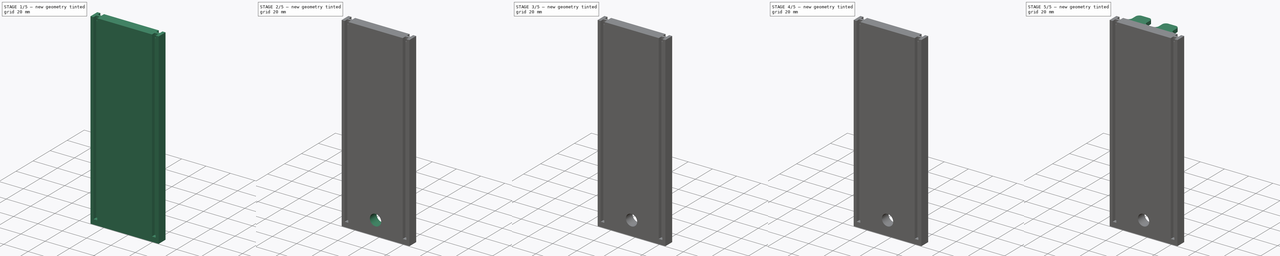
[diagram: build sequence overview — one tinted view per stage of 5, left to right]
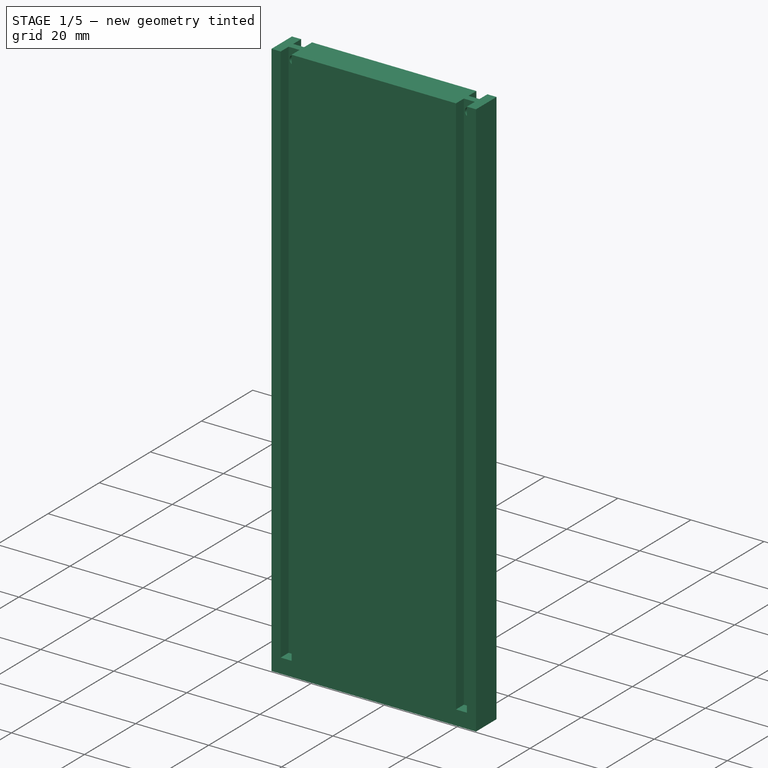
[diagram: stage 1 of 5 — iso view after this stage's code; geometry added in this stage tinted green]
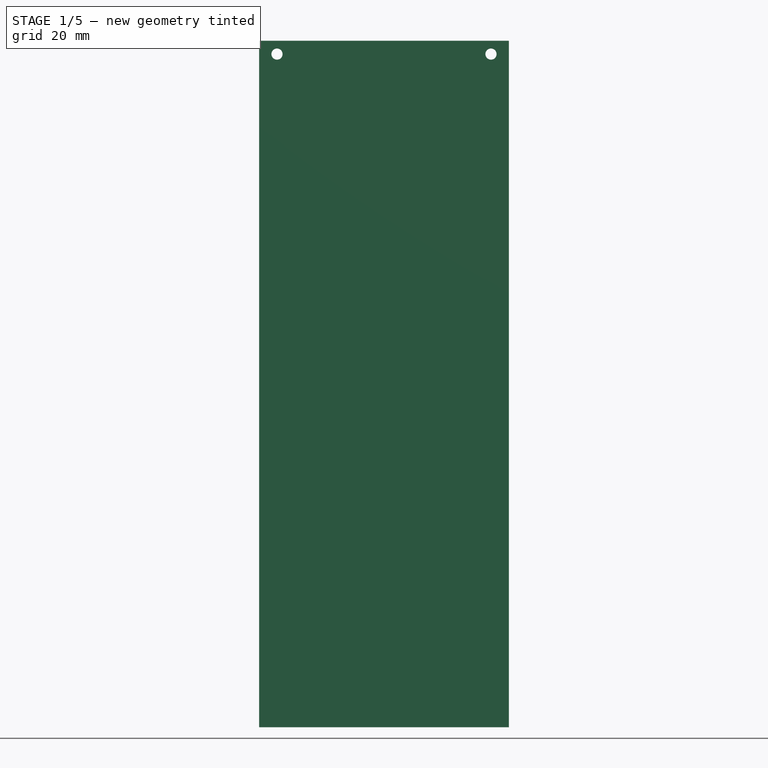
[diagram: stage 1 of 5 — front view after this stage's code; geometry added in this stage tinted green]
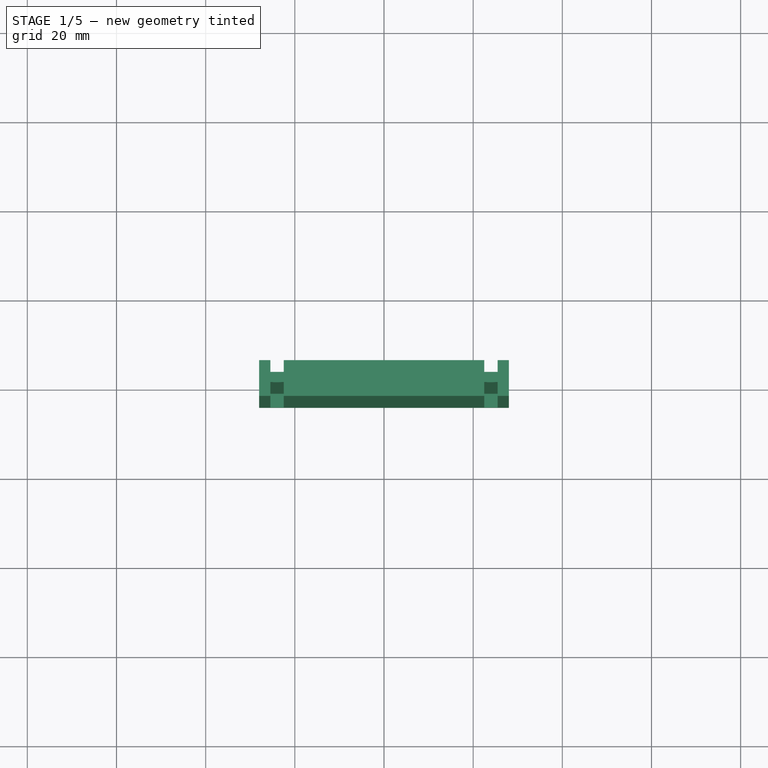
[diagram: stage 1 of 5 — top view after this stage's code; geometry added in this stage tinted green]
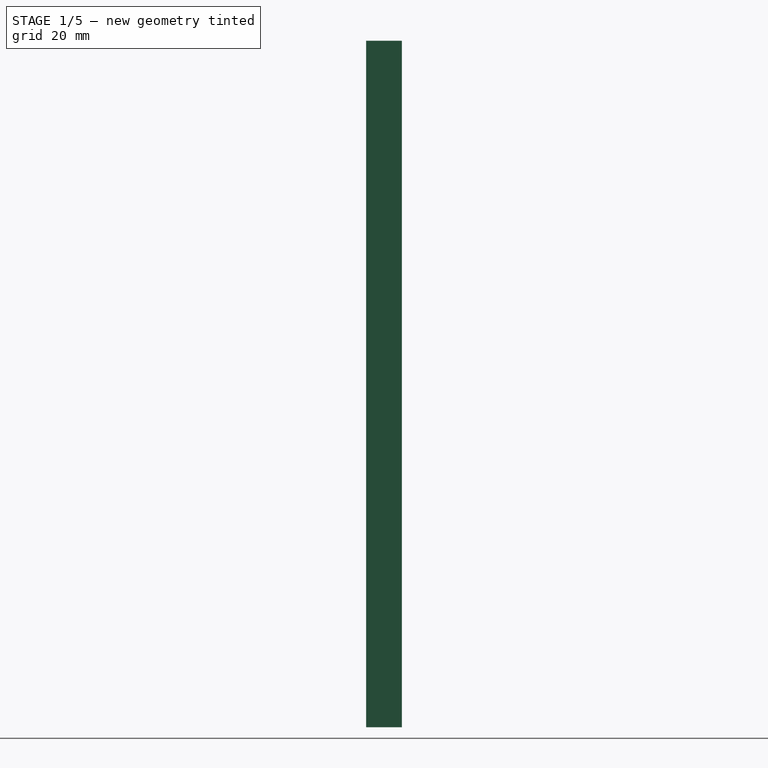
[diagram: stage 1 of 5 — right view after this stage's code; geometry added in this stage tinted green]
FCSTD DOCUMENT  (FreeCAD 0.21R33668 +7 (Git))
Label: socket-set-holder-quarter-inch-drive
License: All rights reserved
LicenseURL: http://en.wikipedia.org/wiki/All_rights_reserved
objects: Sketcher::SketchObject×11, PartDesign::Fillet×8, PartDesign::Pad×5, PartDesign::Mirrored×5, PartDesign::Pocket×4, PartDesign::Line×2, PartDesign::MultiTransform×1, PartDesign::Body×1
note: 54 computed .brp shape members not serialized (recipe doc carries the construction recipe); baked Part::Feature solids carry a one-line shape summary decoded from their .brp
EXTERNAL_REF file=../5132b200/socket-set-common-dims.FCStd obj=Spreadsheet

FEATURE [Sketcher::SketchObject] Sketch
  FullyConstrained = true
  MapMode = 5
  Support = -> [XY_Plane]
  expr: Constraints[10] = <<socket-set-common-dims>>#<<socket carrier channel dims>>.t_top_width
  sketch-geometry (4):
    g0: LineSegment StartX=-28 StartY=4 StartZ=0 EndX=0 EndY=4 EndZ=0
    g1: LineSegment StartX=0 StartY=4 StartZ=0 EndX=0 EndY=-4 EndZ=0
    g2: LineSegment StartX=0 StartY=-4 StartZ=0 EndX=-28 EndY=-4 EndZ=0
    g3: LineSegment StartX=-28 StartY=-4 StartZ=0 EndX=-28 EndY=4 EndZ=0
  constraints (11):
    c: Coincident(g0,g1)
    c: Coincident(g1,g2)
    c: Coincident(g2,g3)
    c: Coincident(g3,g0)
    c: Horizontal(g0)
    c: Horizontal(g2)
    c: Vertical(g1)
    c: Vertical(g3)
    c: Symmetric(g0,g1,g-1)
    c: DistanceX(g0,g0) = 28
    c: DistanceY(g1,g1) = 8
FEATURE [PartDesign::Pad] Pad  label="backstop"
  Direction = (0,0,1)
  Length = 4
  Length2 = 10
  Profile = -> Sketch
  ReferenceAxis = -> Sketch [N_Axis]
  Type = 0
FEATURE [Sketcher::SketchObject] Sketch001
  ExternalGeometry = -> [Pad]
  FullyConstrained = true
  MapMode = 5
  Placement = pos=(0,0,4) rot=(0,0,1;0rad)
  Support = -> [Pad]
  expr: Constraints[17] = <<socket-set-common-dims>>#<<socket carrier channel dims>>.t_height
  expr: Constraints[18] = <<socket-set-common-dims>>#<<socket carrier channel dims>>.t_top_thickness
  expr: Constraints[2] = <<socket-set-common-dims>>#<<socket carrier channel dims>>.t_stem_width
  sketch-geometry (13):
    g0: GeomPoint X=-22.5 Y=0 Z=0
    g1: LineSegment StartX=-22.5 StartY=0.9 StartZ=0 EndX=-25.5 EndY=0.9 EndZ=0
    g2: LineSegment StartX=-25.5 StartY=0.9 StartZ=0 EndX=-25.5 EndY=4 EndZ=0
    g3: LineSegment StartX=-25.5 StartY=4 StartZ=0 EndX=-28 EndY=4 EndZ=0
    g4: LineSegment StartX=-28 StartY=4 StartZ=0 EndX=-28 EndY=-4 EndZ=0
    g5: LineSegment StartX=-28 StartY=-4 StartZ=0 EndX=-25.5 EndY=-4 EndZ=0
    g6: LineSegment StartX=-25.5 StartY=-4 StartZ=0 EndX=-25.5 EndY=-0.9 EndZ=0
    g7: LineSegment StartX=-25.5 StartY=-0.9 StartZ=0 EndX=-22.5 EndY=-0.9 EndZ=0
    g8: LineSegment StartX=-22.5 StartY=0.9 StartZ=0 EndX=-22.5 EndY=4 EndZ=0
    g9: LineSegment StartX=-22.5 StartY=4 StartZ=0 EndX=0 EndY=4 EndZ=0
    g10: LineSegment StartX=0 StartY=4 StartZ=0 EndX=0 EndY=-4 EndZ=0
    g11: LineSegment StartX=0 StartY=-4 StartZ=0 EndX=-22.5 EndY=-4 EndZ=0
    g12: LineSegment StartX=-22.5 StartY=-4 StartZ=0 EndX=-22.5 EndY=-0.9 EndZ=0
  constraints (32):
    c: PointOnObject(g0,g-1)
    c: Symmetric(g7,g1,g0)
    c: DistanceY(g7,g1) = 1.8
    c: Horizontal(g1)
    c: Coincident(g2,g1)
    c: PointOnObject(g2,g-3)
    c: Coincident(g3,g2)
    c: Coincident(g3,g-3)
    c: Coincident(g4,g3)
    c: Coincident(g4,g-4)
    c: Coincident(g5,g4)
    c: Coincident(g6,g5)
    c: Coincident(g7,g6)
    c: Horizontal(g7)
    c: Vertical(g2)
    c: Horizontal(g5)
    c: Tangent(g6,g2)
    c: DistanceX(g4,g7) = 5.5
    c: DistanceX(g5,g5) = 2.5
    c: Coincident(g8,g1)
    c: PointOnObject(g8,g-3)
    c: Vertical(g8)
    c: Coincident(g9,g8)
    c: Coincident(g9,g-3)
    c: Coincident(g10,g9)
    c: Coincident(g10,g-4)
    c: Coincident(g11,g10)
    c: Coincident(g12,g11)
    c: Coincident(g12,g7)
    c: Tangent(g8,g12)
    c: Horizontal(g11)
    c: Distance(g4) = 8
FEATURE [PartDesign::Pad] Pad001  label="channel and body"
  BaseFeature = -> Pad
  Direction = (0,0,1)
  Length = 150
  Length2 = 10
  Profile = -> Sketch001
  ReferenceAxis = -> Sketch001 [N_Axis]
  Type = 0
FEATURE [Sketcher::SketchObject] Sketch002
  ExternalGeometry = -> [Pad001]
  FullyConstrained = true
  MapMode = 5
  Placement = pos=(0,0.9,0) rot=(0,0.707107,0.707107;3.14159rad)
  Support = -> [Pad001]
  sketch-geometry (2):
    g0: Circle CenterX=24 CenterY=151 CenterZ=0 NormalX=0 NormalY=0 NormalZ=1 AngleXU=0 Radius=1.25
    g1: LineSegment StartX=22.5 StartY=151 StartZ=0 EndX=25.5 EndY=151 EndZ=0
  constraints (6):
    c: Diameter(g0) = 2.5
    c: PointOnObject(g1,g-4)
    c: PointOnObject(g1,g-3)
    c: Horizontal(g1)
    c: Symmetric(g1,g1,g0)
    c: DistanceY(g1,g-3) = 3
FEATURE [PartDesign::Pocket] Pocket  label="hole for front stop"
  BaseFeature = -> Pad001
  Direction = (0,-1,2e-16)
  Length = 5
  Length2 = 5
  Profile = -> Sketch002
  ReferenceAxis = -> Sketch002 [N_Axis]
  Type = 2
FEATURE [PartDesign::Mirrored] Mirrored
  BaseFeature = -> Pocket
  MirrorPlane = -> Sketch [V_Axis]
  Originals = -> [Pad,Pad001,Pocket]
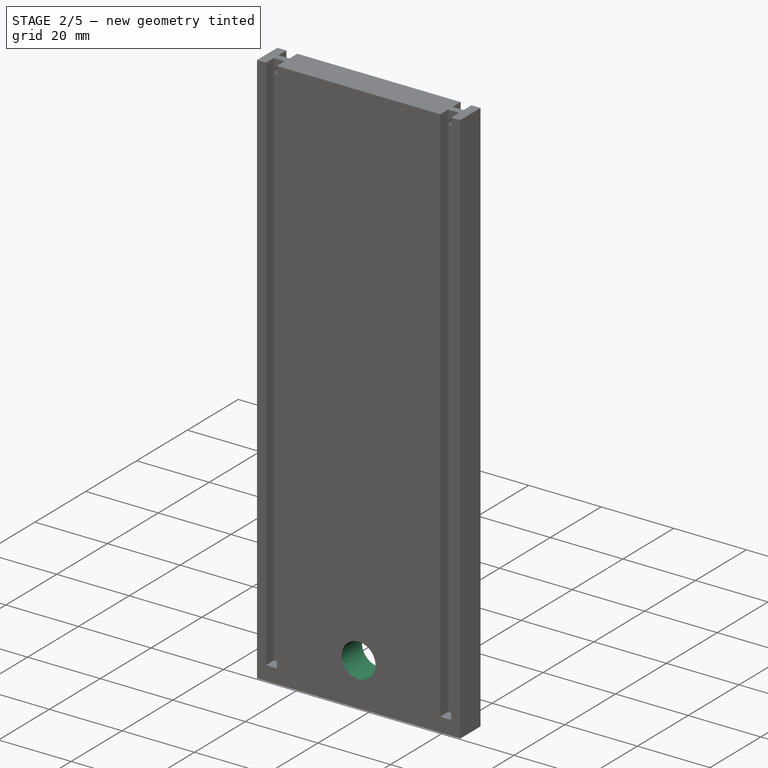
[diagram: stage 2 of 5 — iso view after this stage's code; geometry added in this stage tinted green]
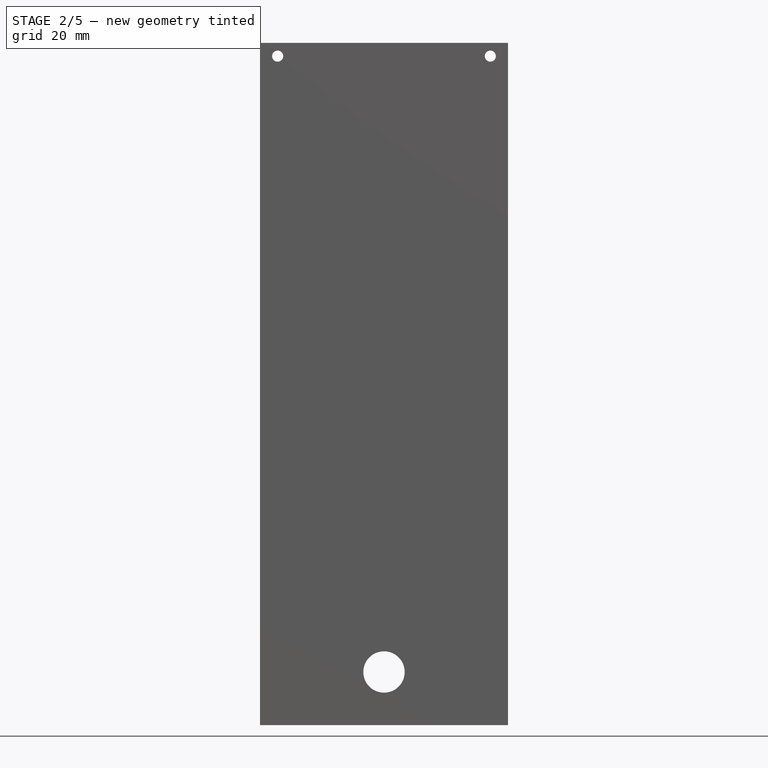
[diagram: stage 2 of 5 — front view after this stage's code; geometry added in this stage tinted green]
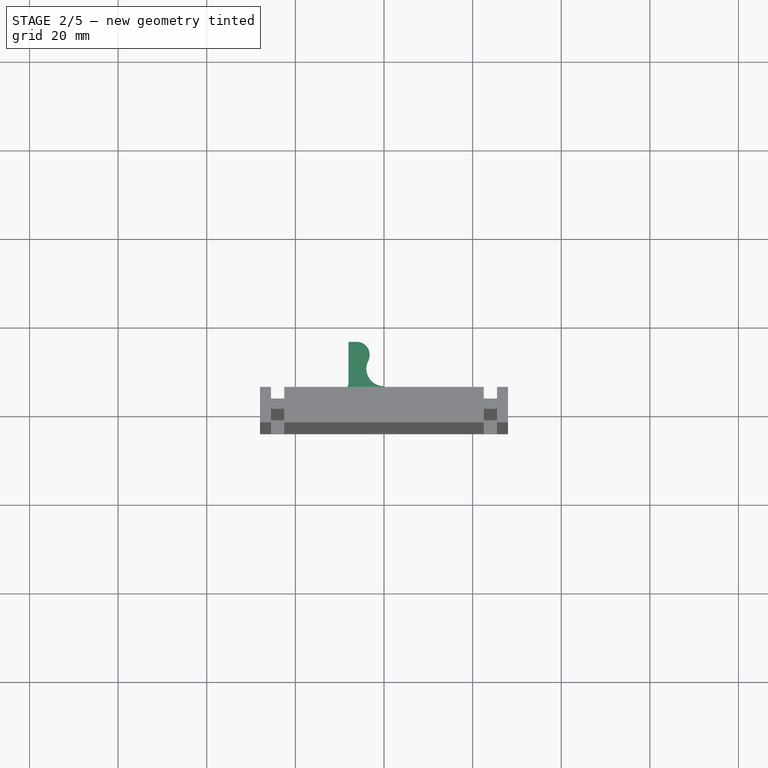
[diagram: stage 2 of 5 — top view after this stage's code; geometry added in this stage tinted green]
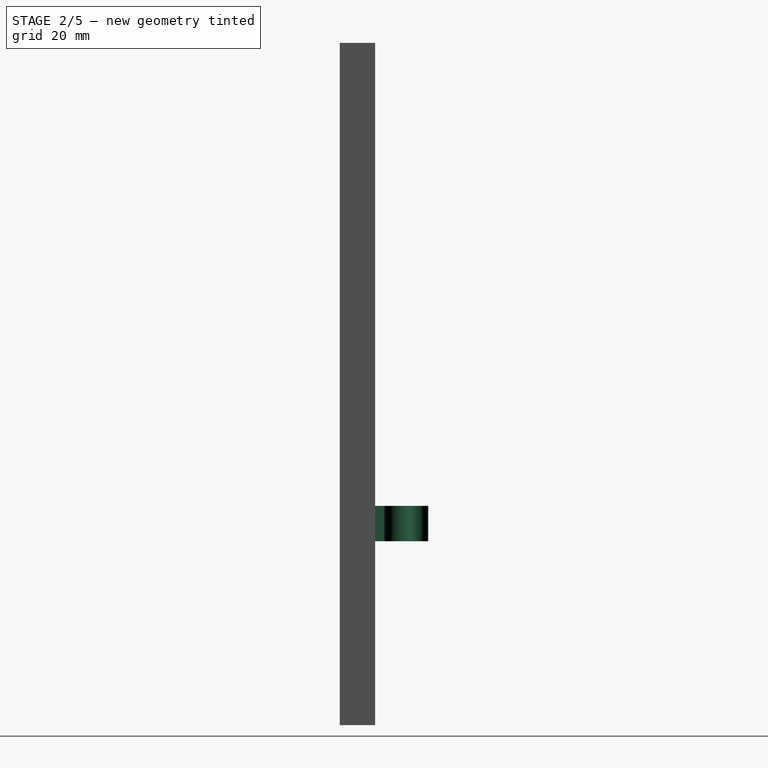
[diagram: stage 2 of 5 — right view after this stage's code; geometry added in this stage tinted green]
FEATURE [Sketcher::SketchObject] Sketch003
  ExternalGeometry = -> [Mirrored]
  FullyConstrained = true
  MapMode = 5
  Placement = pos=(0,4,0) rot=(0,0.707107,0.707107;3.14159rad)
  Support = -> [Mirrored]
  sketch-geometry (7):
    g0: LineSegment StartX=3.3 StartY=8.7 StartZ=0 EndX=-3.3 EndY=8.7 EndZ=0
    g1: LineSegment StartX=-3.3 StartY=8.7 StartZ=0 EndX=-3.3 EndY=15.3 EndZ=0
    g2: LineSegment StartX=-3.3 StartY=15.3 StartZ=0 EndX=3.3 EndY=15.3 EndZ=0
    g3: LineSegment StartX=3.3 StartY=15.3 StartZ=0 EndX=3.3 EndY=8.7 EndZ=0
    g4: LineSegment StartX=0 StartY=12 StartZ=0 EndX=3.3 EndY=12 EndZ=0
    g5: LineSegment StartX=0 StartY=12 StartZ=0 EndX=0 EndY=8.7 EndZ=0
    g6: Circle CenterX=0 CenterY=12 CenterZ=0 NormalX=0 NormalY=0 NormalZ=1 AngleXU=0 Radius=4.6669
  constraints (19):
    c: Coincident(g0,g1)
    c: Coincident(g1,g2)
    c: Coincident(g2,g3)
    c: Coincident(g3,g0)
    c: Horizontal(g0)
    c: Horizontal(g2)
    c: Vertical(g1)
    c: Vertical(g3)
    c: PointOnObject(g4,g-2)
    c: Horizontal(g4)
    c: Coincident(g5,g4)
    c: Symmetric(g0,g0,g5)
    c: PointOnObject(g5,g-2)
    c: Symmetric(g0,g2,g4)
    c: Equal(g1,g0)
    c: DistanceY(g1,g1) = 6.6
    c: DistanceY(g-3,g4) = 8
    c: Coincident(g6,g4)
    c: PointOnObject(g1,g6)
FEATURE [PartDesign::Pocket] Pocket001  label="drive hole"
  BaseFeature = -> Mirrored
  Direction = (0,-1,2e-16)
  Length = 5
  Length2 = 5
  Profile = -> Sketch003
  ReferenceAxis = -> Sketch003 [N_Axis]
  Type = 2
FEATURE [Sketcher::SketchObject] Sketch004
  ExternalGeometry = -> [Pocket001]
  FullyConstrained = true
  MapMode = 5
  Placement = pos=(0,4,0) rot=(0,0.707107,0.707107;3.14159rad)
  Support = -> [Pocket001]
  sketch-geometry (1):
    g0: Circle CenterX=0 CenterY=12 CenterZ=0 NormalX=0 NormalY=0 NormalZ=1 AngleXU=0 Radius=4.6669
  constraints (2):
    c: Coincident(g0,g-5)
    c: PointOnObject(g-5,g0)
FEATURE [PartDesign::Line] DatumLine
  AttacherType = Attacher::AttachEngineLine
  Length = 20
  MapMode = 19
  Placement = pos=(0,4,12) rot=(0,0.707107,0.707107;3.14159rad)
  ResizeMode = 0
  Support = -> [Sketch004]
FEATURE [Sketcher::SketchObject] Sketch006
  ExternalGeometry = -> [DatumLine]
  FullyConstrained = true
  MapMode = 5
  Placement = pos=(0,4,0) rot=(0,0.707107,0.707107;3.14159rad)
  Support = -> [Pocket001]
  sketch-geometry (5):
    g0: LineSegment StartX=8 StartY=41.5 StartZ=0 EndX=0 EndY=41.5 EndZ=0
    g1: LineSegment StartX=0 StartY=41.5 StartZ=0 EndX=0 EndY=49.5 EndZ=0
    g2: LineSegment StartX=0 StartY=49.5 StartZ=0 EndX=8 EndY=49.5 EndZ=0
    g3: LineSegment StartX=8 StartY=49.5 StartZ=0 EndX=8 EndY=41.5 EndZ=0
    g4: GeomPoint X=0 Y=45.5 Z=0
  constraints (13):
    c: Coincident(g0,g1)
    c: Coincident(g1,g2)
    c: Coincident(g2,g3)
    c: Coincident(g3,g0)
    c: Horizontal(g0)
    c: Horizontal(g2)
    c: Vertical(g1)
    c: Vertical(g3)
    c: DistanceY(g1,g1) = 8
    c: DistanceX(g0,g0) = 8
    c: PointOnObject(g1,g-2)
    c: Symmetric(g1,g0,g4)
    c: DistanceY(g-3,g4) = 33.5
FEATURE [PartDesign::Pad] Pad002  label="snap clip block"
  Direction = (0,1,-2e-16)
  Length = 12
  Length2 = 10
  Profile = -> Sketch006
  ReferenceAxis = -> Sketch006 [N_Axis]
  Type = 0
FEATURE [Sketcher::SketchObject] Sketch007
  ExternalGeometry = -> [Pad002]
  FullyConstrained = false
  MapMode = 5
  Placement = pos=(0,1.1e-14,49.5) rot=(0,0,1;0rad)
  Support = -> [Pad002]
  sketch-geometry (10):
    g0: Circle CenterX=0 CenterY=10 CenterZ=0 NormalX=0 NormalY=0 NormalZ=1 AngleXU=0 Radius=4
    g1: GeomPoint X=-7e-16 Y=6 Z=0
    g2: Circle CenterX=-6.12702 CenterY=13.123 CenterZ=0 NormalX=0 NormalY=0 NormalZ=1 AngleXU=0 Radius=2.87702
    g3: ArcOfCircle CenterX=0 CenterY=10 CenterZ=0 NormalX=0 NormalY=0 NormalZ=1 AngleXU=0 Radius=4 StartAngle=2.67021 EndAngle=4.71239
    g4: ArcOfCircle CenterX=-6.12702 CenterY=13.123 CenterZ=0 NormalX=0 NormalY=0 NormalZ=1 AngleXU=0 Radius=2.87702 StartAngle=5.81181 EndAngle=7.85398
    g5: LineSegment StartX=0 StartY=16 StartZ=0 EndX=-7e-16 EndY=6 EndZ=0
    g6: LineSegment StartX=-3.25 StartY=13.123 StartZ=0 EndX=0 EndY=13.123 EndZ=0
    g7: LineSegment StartX=-3.25 StartY=13.123 StartZ=0 EndX=-3.25 EndY=16 EndZ=0
    g8: LineSegment StartX=-4 StartY=16 StartZ=0 EndX=-4 EndY=4 EndZ=0
    g9: LineSegment StartX=-6.12702 StartY=16 StartZ=0 EndX=0 EndY=16 EndZ=0
  constraints (26):
    c: PointOnObject(g0,g-2)
    c: Diameter(g0) = 8
    c: PointOnObject(g1,g0)
    c: PointOnObject(g1,g-2)
    c: Tangent(g2,g0)
    c: Coincident(g3,g0)
    c: Coincident(g3,g1)
    c: Coincident(g4,g2)
    c: PointOnObject(g4,g2)
    c: Coincident(g4,g3)
    c: PointOnObject(g6,g4)
    c: PointOnObject(g6,g-2)
    c: Horizontal(g6)
    c: Coincident(g7,g6)
    c: Vertical(g7)
    c: Tangent(g7,g4)
    c: Vertical(g8)
    c: Tangent(g8,g3)
    c: DistanceX(g8,g6) = 0.75
    c: Coincident(g5,g3)
    c: Coincident(g9,g5)
    c: PointOnObject(g7,g9)
    c: DistanceY(g-3,g3) = 2
    c: Coincident(g5,g-4)
    c: Horizontal(g9)
    c: Tangent(g9,g4) = 1.5708
FEATURE [PartDesign::Pocket] Pocket003  label="snap clip shape"
  BaseFeature = -> Pad002
  Direction = (0,-2e-16,-1)
  Length = 5
  Length2 = 5
  Profile = -> Sketch007
  ReferenceAxis = -> Sketch007 [N_Axis]
  Type = 2
FEATURE [PartDesign::Fillet] Fillet001  label="snap clip side fillet"
  Base = -> Pocket003 [Edge64]
  BaseFeature = -> Pocket003
  Radius = 3
  SupportTransform = false
  UseAllEdges = false
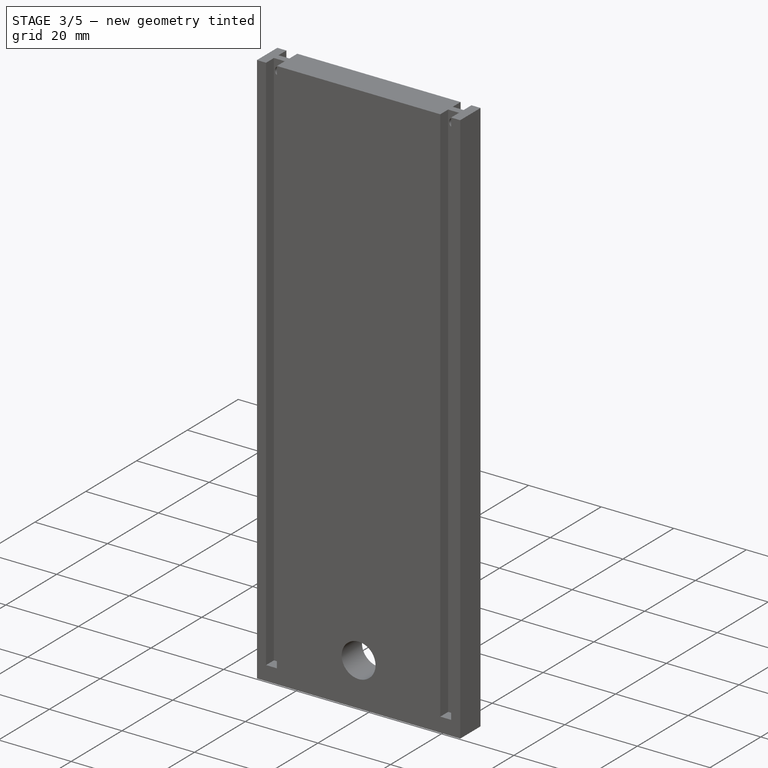
[diagram: stage 3 of 5 — iso view after this stage's code; geometry added in this stage tinted green]
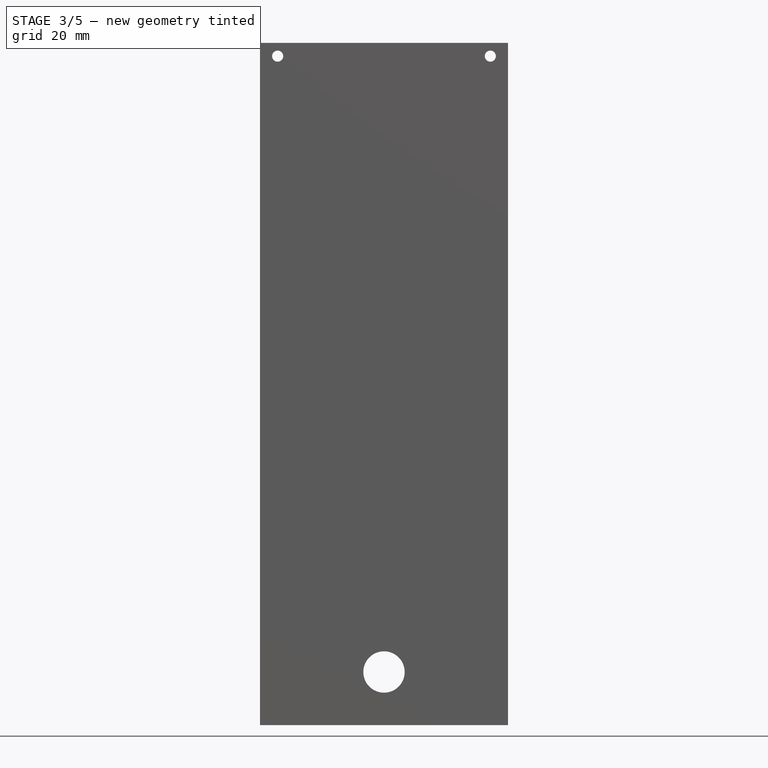
[diagram: stage 3 of 5 — front view after this stage's code; geometry added in this stage tinted green]
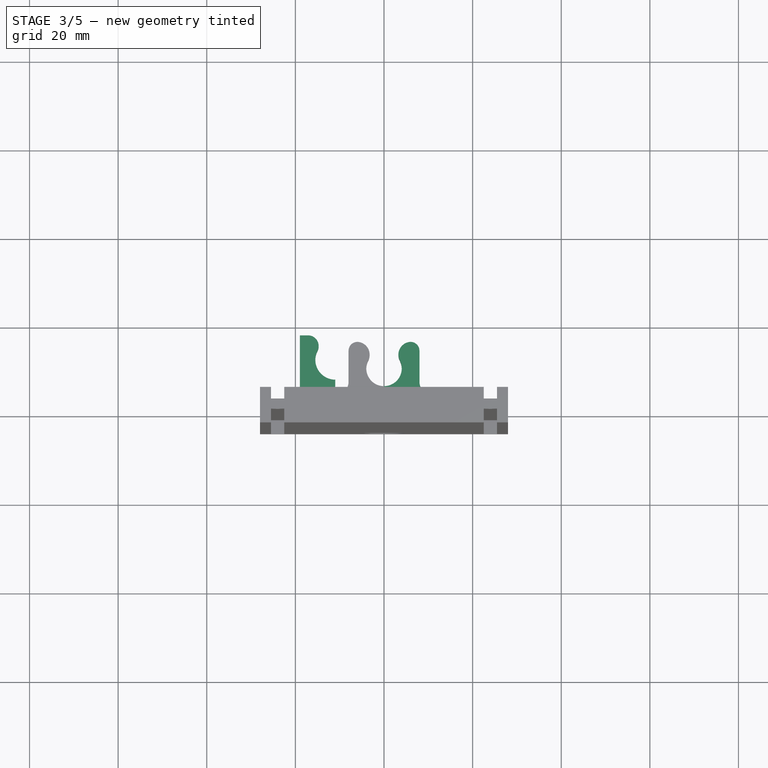
[diagram: stage 3 of 5 — top view after this stage's code; geometry added in this stage tinted green]
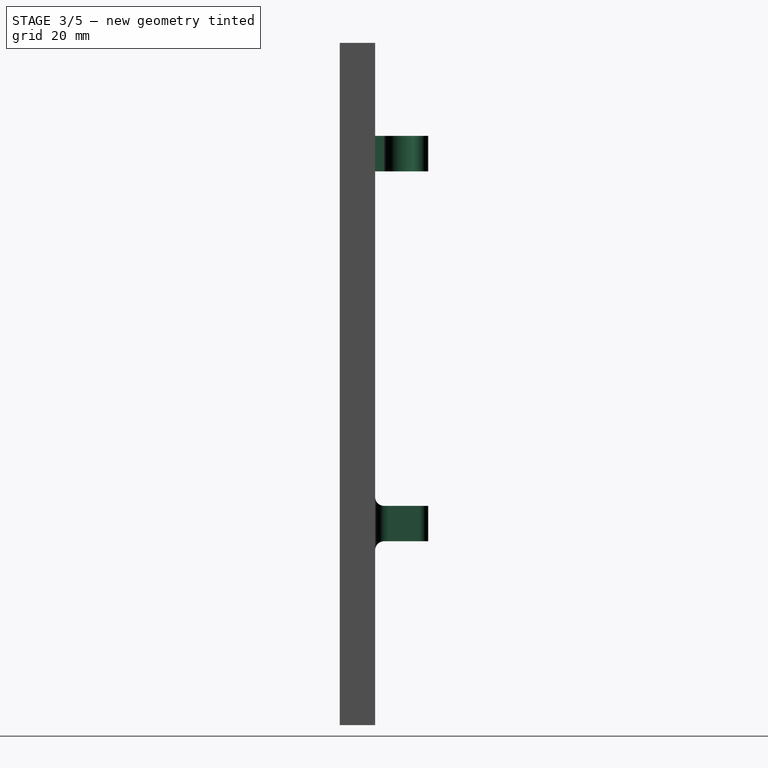
[diagram: stage 3 of 5 — right view after this stage's code; geometry added in this stage tinted green]
FEATURE [PartDesign::Fillet] Fillet002  label="snap clip top fillet"
  Base = -> Fillet001 [Edge54]
  BaseFeature = -> Fillet001
  Radius = 2
  SupportTransform = false
  UseAllEdges = false
FEATURE [PartDesign::Mirrored] Mirrored001
  BaseFeature = -> Fillet002
  MirrorPlane = -> Sketch006 [V_Axis]
  Originals = -> [Pad002,Pocket003,Fillet001,Fillet002]
FEATURE [PartDesign::Fillet] Fillet003  label="snap clip block misc fillets"
  Base = -> Mirrored001 [Edge7,Edge5,Edge30,Edge42,Edge21,Edge19,Edge39,Edge40]
  BaseFeature = -> Mirrored001
  Radius = 2
  SupportTransform = false
  UseAllEdges = false
FEATURE [Sketcher::SketchObject] Sketch009
  ExternalGeometry = -> [Fillet003]
  FullyConstrained = true
  MapMode = 5
  Placement = pos=(0,4,0) rot=(0,0.707107,0.707107;3.14159rad)
  Support = -> [Fillet003]
  sketch-geometry (1):
    g0: LineSegment StartX=11 StartY=104 StartZ=0 EndX=11 EndY=154 EndZ=0
  constraints (4):
    c: Vertical(g0)
    c: DistanceY(g0,g0) = 50
    c: PointOnObject(g0,g-3)
    c: DistanceX(g-3,g0) = 11
FEATURE [PartDesign::Line] DatumLine001
  AttacherType = Attacher::AttachEngineLine
  Length = 20
  MapMode = 29
  Placement = pos=(-11,4,0) rot=(0,0,1;0rad)
  ResizeMode = 0
  Support = -> [Sketch009]
FEATURE [Sketcher::SketchObject] Sketch010
  ExternalGeometry = -> [DatumLine001,Fillet003]
  FullyConstrained = true
  MapMode = 5
  Placement = pos=(0,4,0) rot=(0,0.707107,0.707107;3.14159rad)
  Support = -> [Fillet003]
  sketch-geometry (5):
    g0: LineSegment StartX=19 StartY=133 StartZ=0 EndX=11 EndY=133 EndZ=0
    g1: LineSegment StartX=11 StartY=133 StartZ=0 EndX=11 EndY=125 EndZ=0
    g2: LineSegment StartX=11 StartY=125 StartZ=0 EndX=19 EndY=125 EndZ=0
    g3: LineSegment StartX=19 StartY=125 StartZ=0 EndX=19 EndY=133 EndZ=0
    g4: GeomPoint X=11 Y=129 Z=0
  constraints (13):
    c: Coincident(g0,g1)
    c: Coincident(g1,g2)
    c: Coincident(g2,g3)
    c: Coincident(g3,g0)
    c: Horizontal(g0)
    c: Horizontal(g2)
    c: Vertical(g1)
    c: Vertical(g3)
    c: Equal(g3,g0)
    c: DistanceY(g3,g3) = 8
    c: PointOnObject(g4,g-3)
    c: DistanceY(g4,g-4) = 25
    c: Symmetric(g0,g1,g4)
FEATURE [PartDesign::Pad] Pad003  label="extension snap clip block"
  BaseFeature = -> Fillet003
  Direction = (0,1,-2e-16)
  Length = 12
  Length2 = 10
  Profile = -> Sketch010
  ReferenceAxis = -> Sketch010 [N_Axis]
  Type = 0
FEATURE [Sketcher::SketchObject] Sketch011
  ExternalGeometry = -> [Pad003]
  FullyConstrained = true
  MapMode = 5
  Placement = pos=(0,2.95e-14,133) rot=(0,0,1;0rad)
  Support = -> [Pad003]
  sketch-geometry (9):
    g0: Circle CenterX=-11 CenterY=10.5 CenterZ=0 NormalX=0 NormalY=0 NormalZ=1 AngleXU=0 Radius=4.5
    g1: GeomPoint X=-11 Y=6 Z=0
    g2: Circle CenterX=-17.127 CenterY=13.623 CenterZ=0 NormalX=0 NormalY=0 NormalZ=1 AngleXU=0 Radius=2.37702
    g3: LineSegment StartX=-15.5 StartY=16 StartZ=0 EndX=-15.5 EndY=10.5 EndZ=0
    g4: LineSegment StartX=-14.75 StartY=16 StartZ=0 EndX=-14.75 EndY=13.623 EndZ=0
    g5: ArcOfCircle CenterX=-11 CenterY=10.5 CenterZ=0 NormalX=0 NormalY=0 NormalZ=1 AngleXU=0 Radius=4.5 StartAngle=2.67021 EndAngle=4.71239
    g6: ArcOfCircle CenterX=-17.127 CenterY=13.623 CenterZ=0 NormalX=0 NormalY=0 NormalZ=1 AngleXU=0 Radius=2.37702 StartAngle=5.8118 EndAngle=7.85398
    g7: LineSegment StartX=-17.127 StartY=16 StartZ=0 EndX=-11 EndY=16 EndZ=0
    g8: LineSegment StartX=-11 StartY=16 StartZ=0 EndX=-11 EndY=6 EndZ=0
  constraints (25):
    c: PointOnObject(g0,g-3)
    c: PointOnObject(g1,g0)
    c: PointOnObject(g1,g-3)
    c: DistanceY(g-3,g1) = 2
    c: Diameter(g0) = 9
    c: Tangent(g2,g0)
    c: Tangent(g2,g-4)
    c: PointOnObject(g3,g-4)
    c: PointOnObject(g3,g0)
    c: Vertical(g3)
    c: Tangent(g3,g0)
    c: PointOnObject(g4,g-4)
    c: Vertical(g4)
    c: Tangent(g4,g2) = 1.5708
    c: DistanceX(g3,g4) = 0.75
    c: Coincident(g5,g0)
    c: Coincident(g5,g1)
    c: Coincident(g6,g2)
    c: PointOnObject(g6,g2)
    c: Coincident(g7,g6)
    c: Coincident(g7,g-4)
    c: Horizontal(g7)
    c: Coincident(g8,g7)
    c: Coincident(g8,g5)
    c: Coincident(g5,g6)
FEATURE [PartDesign::Pocket] Pocket004  label="extension snap clip block shape"
  BaseFeature = -> Pad003
  Direction = (0,-2e-16,-1)
  Length = 5
  Length2 = 5
  Profile = -> Sketch011
  ReferenceAxis = -> Sketch011 [N_Axis]
  Type = 2
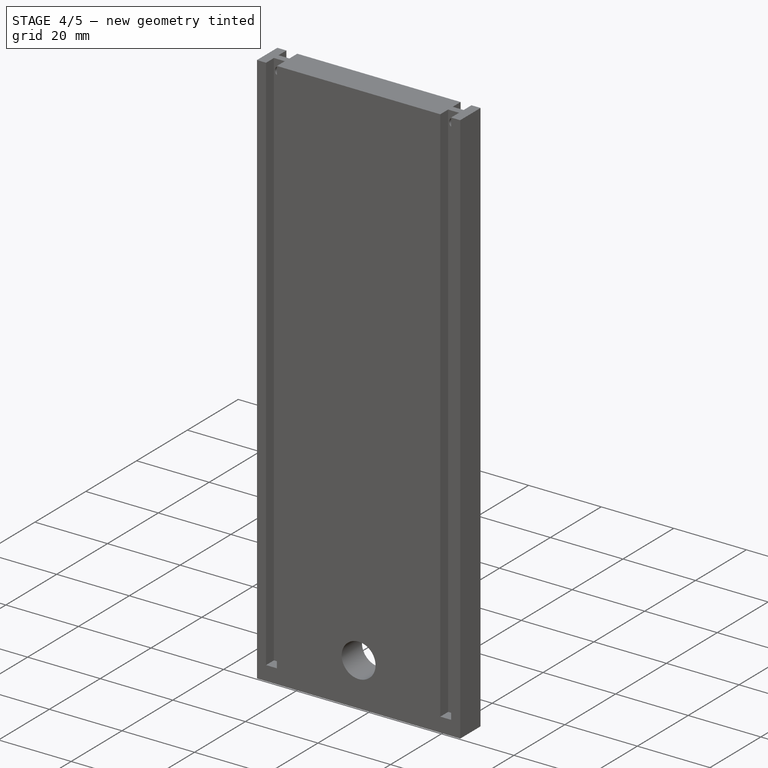
[diagram: stage 4 of 5 — iso view after this stage's code; geometry added in this stage tinted green]
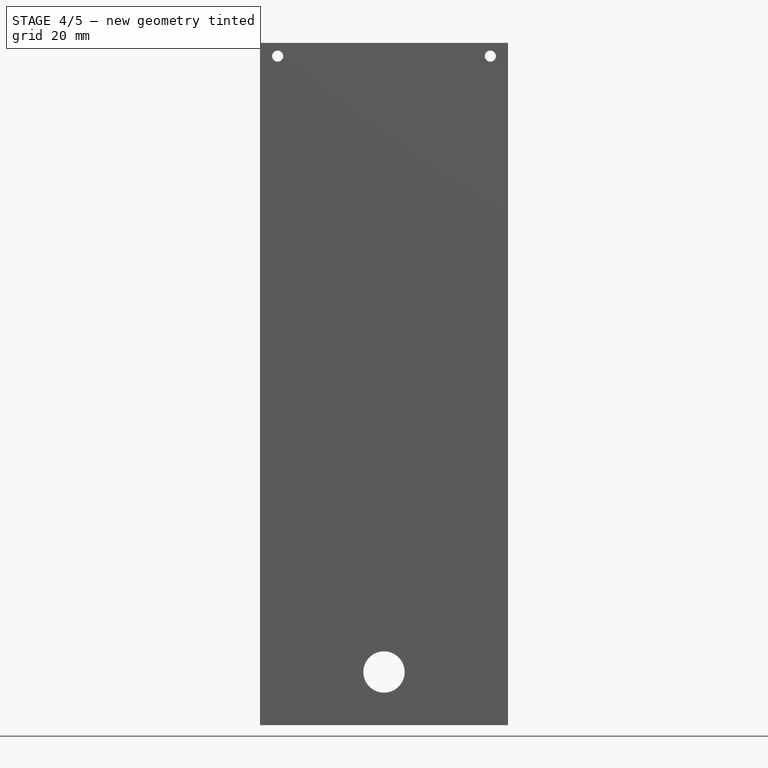
[diagram: stage 4 of 5 — front view after this stage's code; geometry added in this stage tinted green]
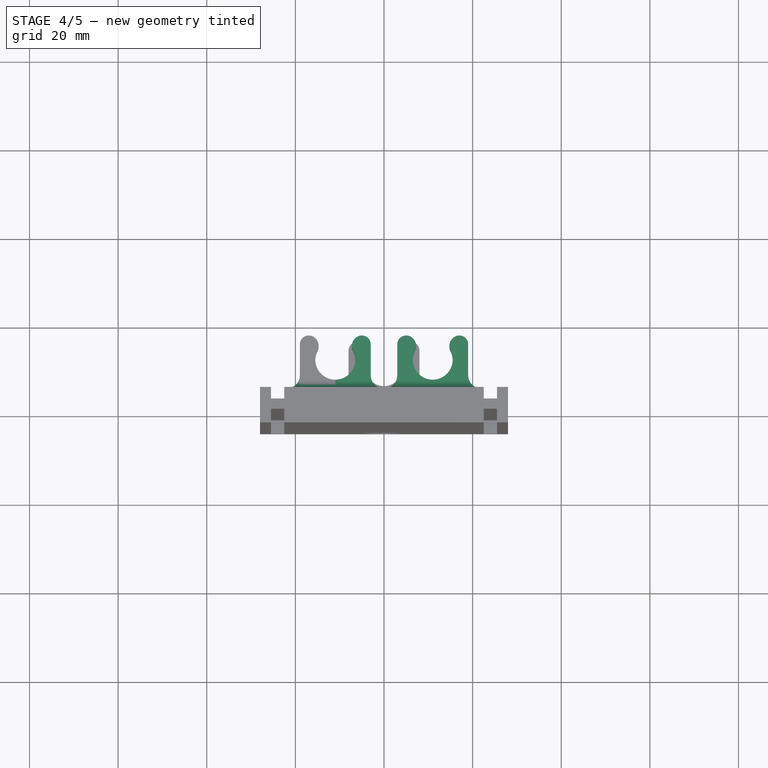
[diagram: stage 4 of 5 — top view after this stage's code; geometry added in this stage tinted green]
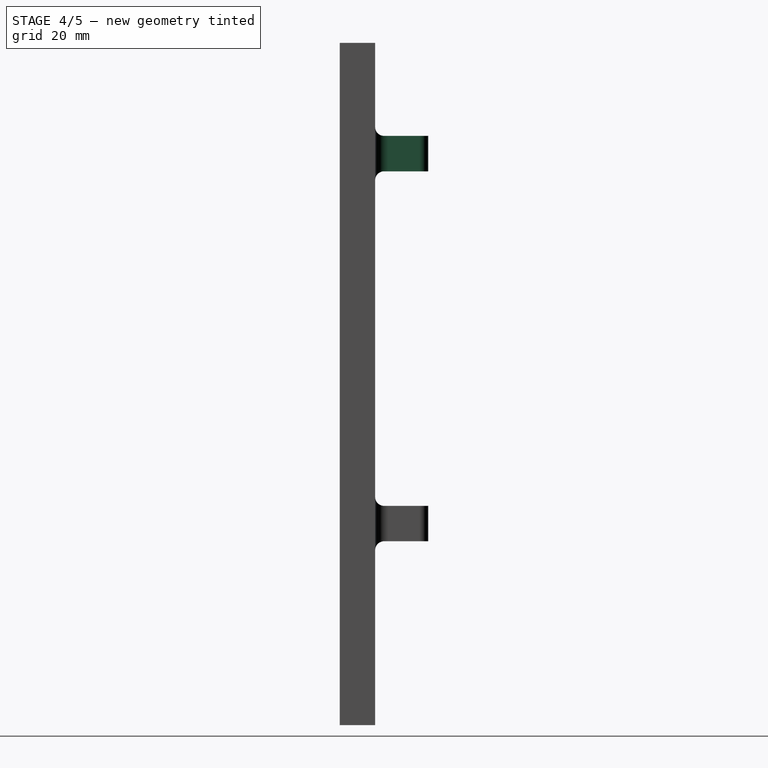
[diagram: stage 4 of 5 — right view after this stage's code; geometry added in this stage tinted green]
FEATURE [PartDesign::Fillet] Fillet  label="extension snap clip block side fillet"
  Base = -> Pocket004 [Edge40]
  BaseFeature = -> Pocket004
  Radius = 3
  SupportTransform = false
  UseAllEdges = false
FEATURE [PartDesign::Fillet] Fillet004  label="extension snap clip block top fillet"
  Base = -> Fillet [Edge82]
  BaseFeature = -> Fillet
  Radius = 2
  SupportTransform = false
  UseAllEdges = false
FEATURE [PartDesign::Fillet] Fillet005  label="extension snap clip block misc fillets"
  Base = -> Fillet004 [Edge20,Edge7]
  BaseFeature = -> Fillet004
  Radius = 2
  SupportTransform = false
  UseAllEdges = false
FEATURE [PartDesign::Mirrored] Mirrored003
  MirrorPlane = -> Fillet005 [Face12]
FEATURE [PartDesign::Mirrored] Mirrored004
  MirrorPlane = -> Sketch010 [V_Axis]
FEATURE [PartDesign::MultiTransform] MultiTransform
  BaseFeature = -> Fillet005
  Originals = -> [Pad003,Pocket004,Fillet,Fillet004,Fillet005]
  Transformations = -> [Mirrored003,Mirrored004]
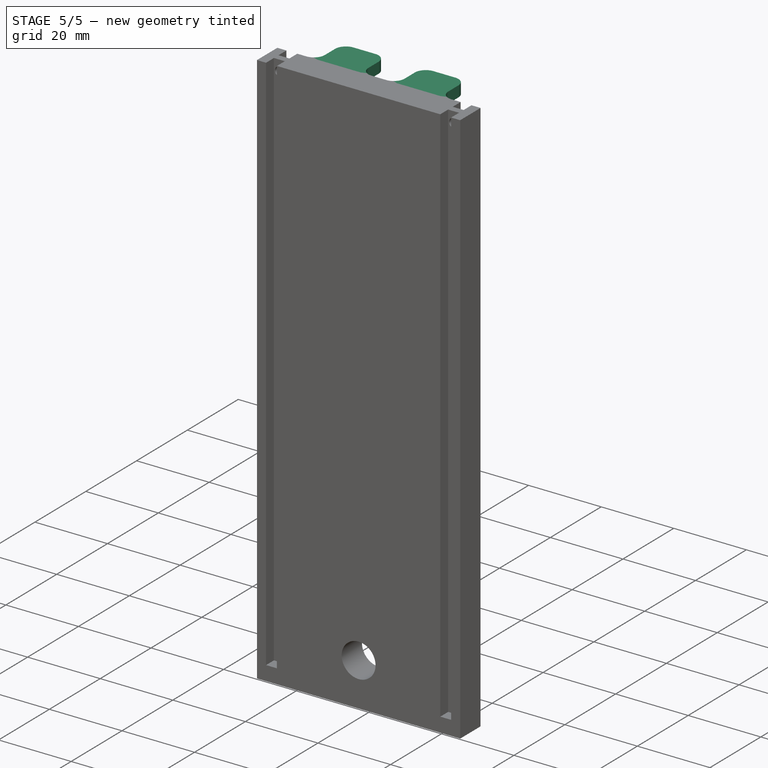
[diagram: stage 5 of 5 — iso view after this stage's code; geometry added in this stage tinted green]
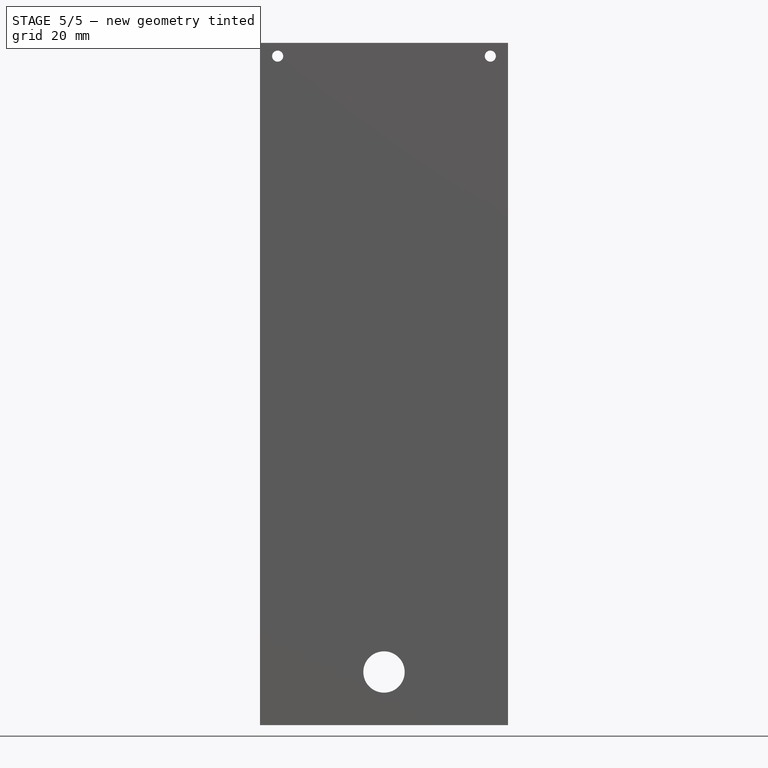
[diagram: stage 5 of 5 — front view after this stage's code; geometry added in this stage tinted green]
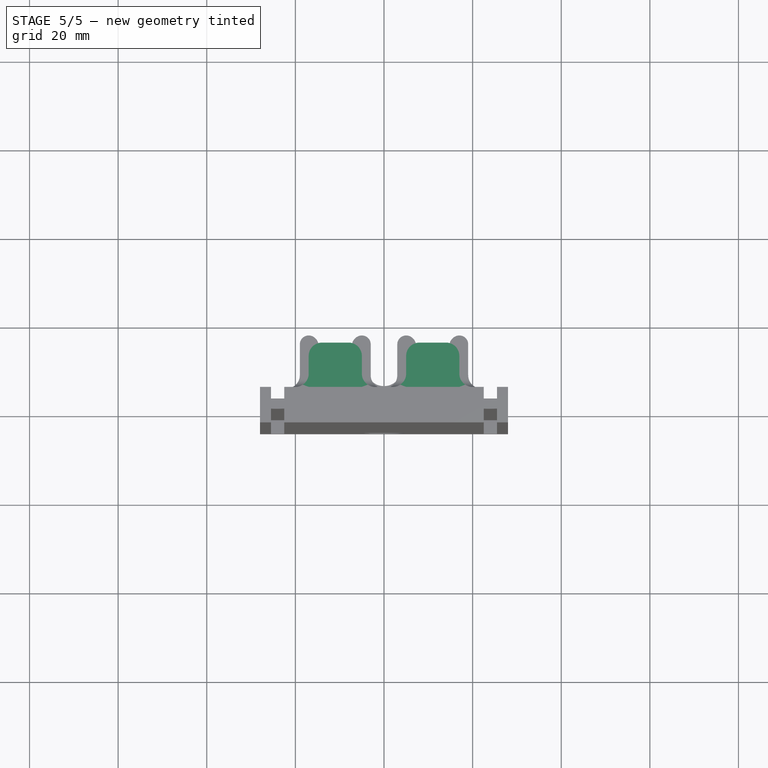
[diagram: stage 5 of 5 — top view after this stage's code; geometry added in this stage tinted green]
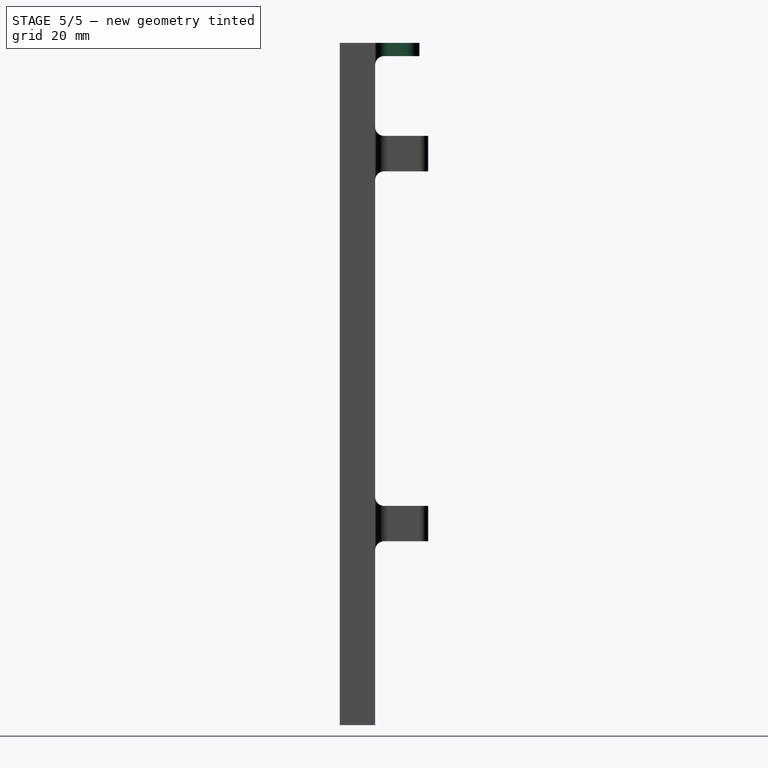
[diagram: stage 5 of 5 — right view after this stage's code; geometry added in this stage tinted green]
FEATURE [Sketcher::SketchObject] Sketch012
  ExternalGeometry = -> [MultiTransform,DatumLine001]
  FullyConstrained = true
  MapMode = 5
  Placement = pos=(0,4,0) rot=(0,0.707107,0.707107;3.14159rad)
  Support = -> [MultiTransform]
  sketch-geometry (5):
    g0: LineSegment StartX=17 StartY=151 StartZ=0 EndX=5 EndY=151 EndZ=0
    g1: LineSegment StartX=5 StartY=151 StartZ=0 EndX=5 EndY=154 EndZ=0
    g2: LineSegment StartX=5 StartY=154 StartZ=0 EndX=17 EndY=154 EndZ=0
    g3: LineSegment StartX=17 StartY=154 StartZ=0 EndX=17 EndY=151 EndZ=0
    g4: GeomPoint X=11 Y=151 Z=0
  constraints (13):
    c: Coincident(g0,g1)
    c: Coincident(g1,g2)
    c: Coincident(g2,g3)
    c: Coincident(g3,g0)
    c: Horizontal(g0)
    c: Horizontal(g2)
    c: Vertical(g1)
    c: Vertical(g3)
    c: Symmetric(g0,g0,g4)
    c: PointOnObject(g4,g-4)
    c: PointOnObject(g1,g-3)
    c: DistanceY(g1,g1) = 3
    c: DistanceX(g2,g2) = 12
FEATURE [PartDesign::Pad] Pad004
  BaseFeature = -> MultiTransform
  Direction = (0,1,-2e-16)
  Length = 10
  Length2 = 10
  Profile = -> Sketch012
  ReferenceAxis = -> Sketch012 [N_Axis]
  Type = 0
FEATURE [PartDesign::Fillet] Fillet006
  Base = -> Pad004 [Edge104,Edge36,Edge108,Edge38]
  BaseFeature = -> Pad004
  Radius = 3
  SupportTransform = false
  UseAllEdges = false
FEATURE [PartDesign::Fillet] Fillet007
  Base = -> Fillet006 [Edge6]
  BaseFeature = -> Fillet006
  Radius = 2
  SupportTransform = false
  UseAllEdges = false
FEATURE [PartDesign::Mirrored] Mirrored005
  BaseFeature = -> Fillet007
  MirrorPlane = -> Sketch012 [V_Axis]
  Originals = -> [Pad004,Fillet006,Fillet007]
FEATURE [PartDesign::Body] Body
  Group = -> [Sketch,Pad,Sketch001,Pad001,Sketch002,Pocket,Mirrored,Sketch003,Pocket001,Sketch004,DatumLine,Sketch006,Pad002,Sketch007,Pocket003,Fillet001,Fillet002,Mirrored001,Fillet003,Sketch009,DatumLine001,Sketch010,Pad003,Sketch011,Pocket004,Fillet,Fillet004,Fillet005,Mirrored003,Mirrored004,MultiTransform,Sketch012,Pad004,Fillet006,Fillet007,Mirrored005]
  Origin = -> Origin
  Tip = -> Pad001
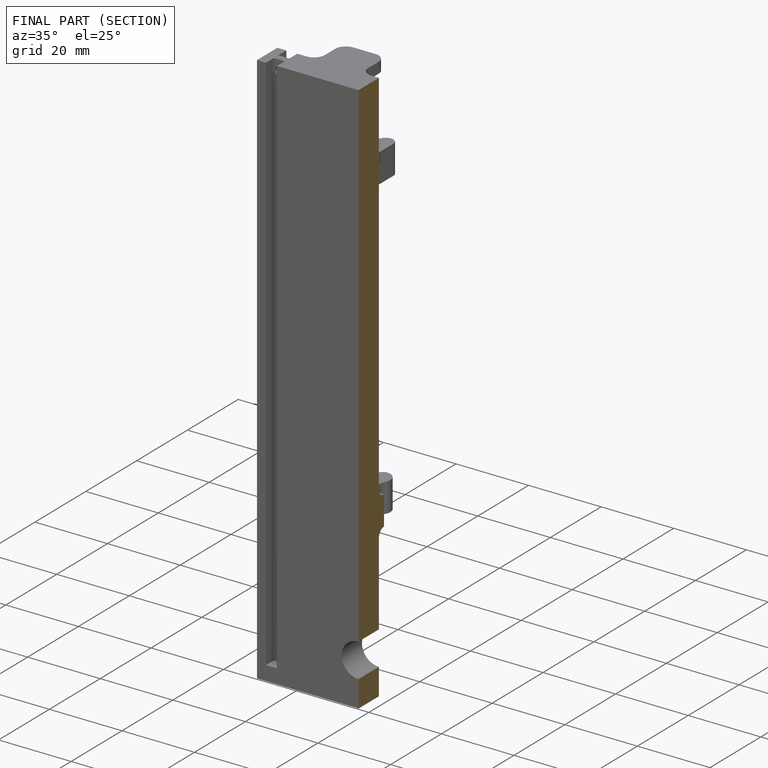
[diagram: finished part — half-section view (interior)]
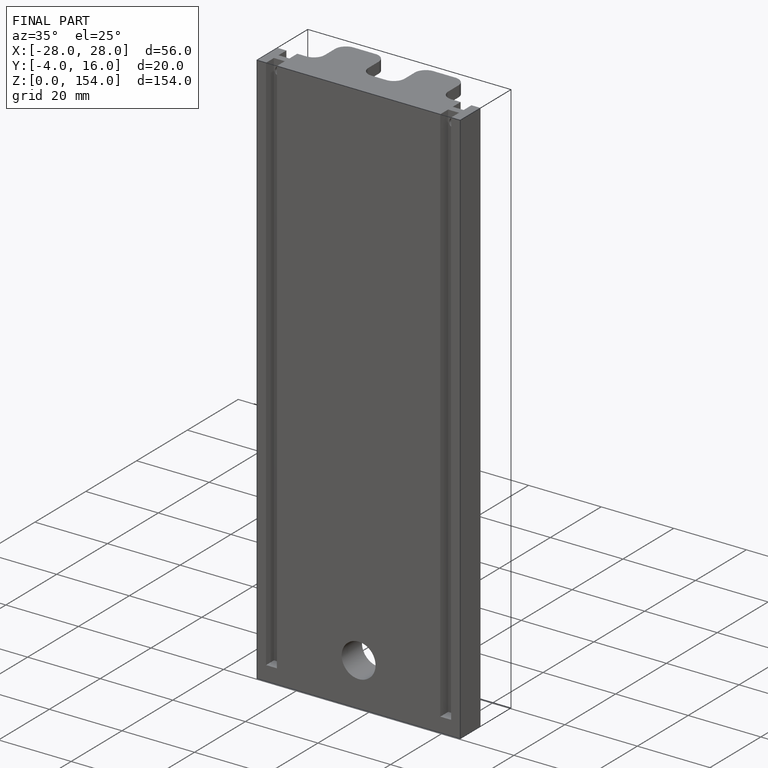
[diagram: finished part — iso view with bounding-box wireframe]
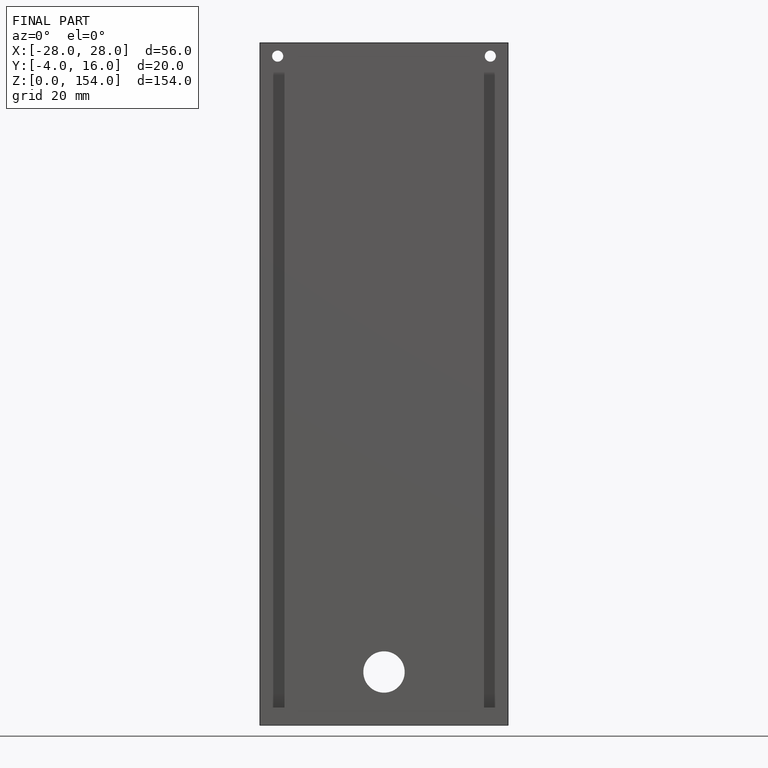
[diagram: finished part — front view with bounding-box wireframe]
